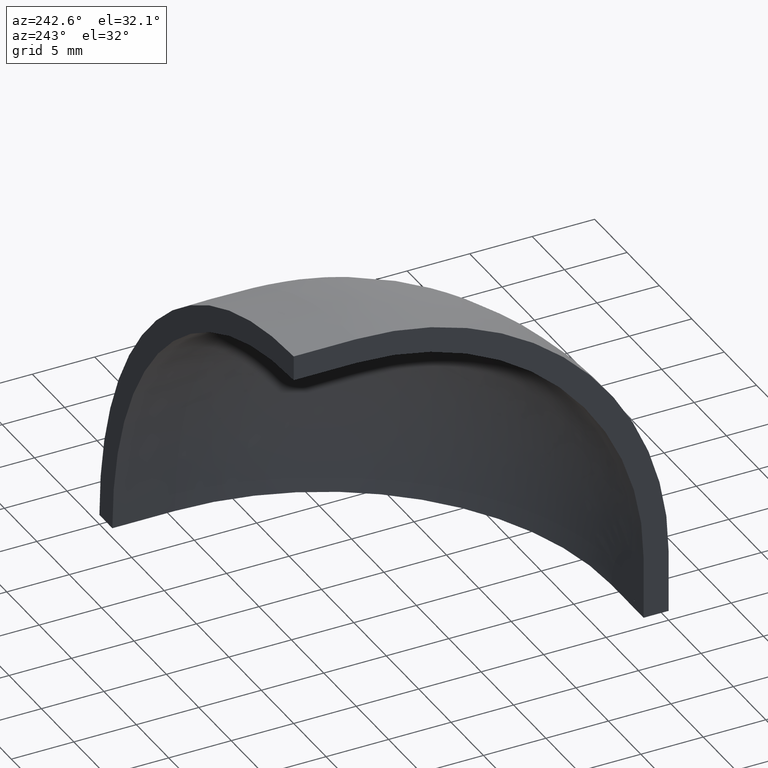
[diagram: clean part render]
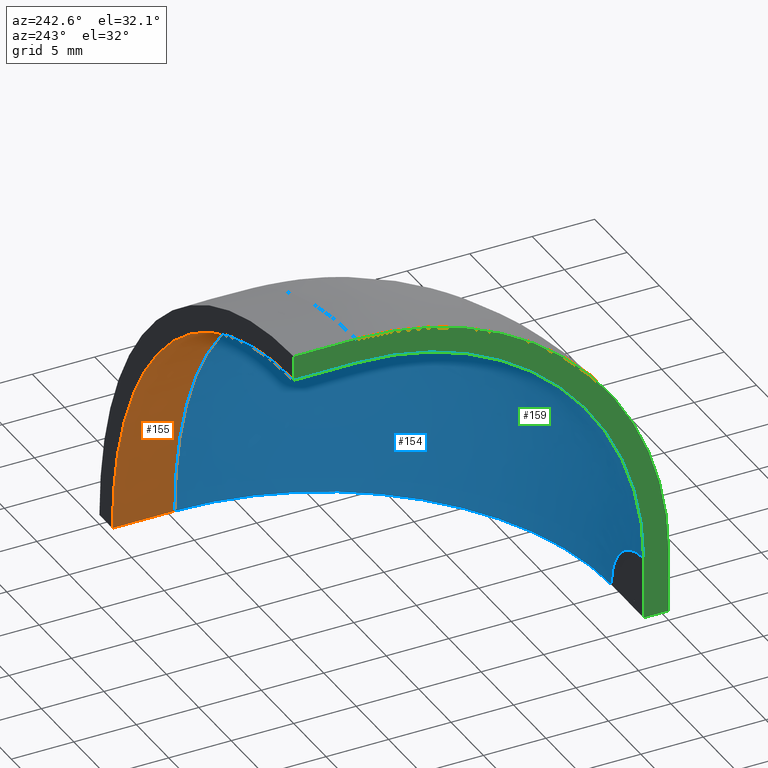
[diagram: same view with three faces highlighted in distinct colors, each labeled with its STEP entity id]
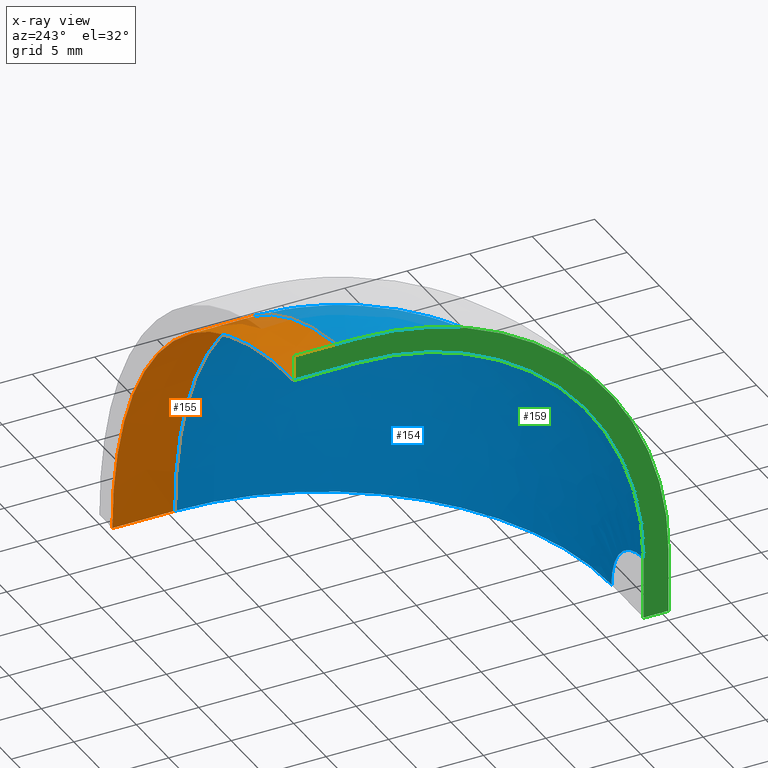
[diagram: x-ray of the same camera — body ghosted, the three highlighted faces saturated]
A machine part, auxiliary view with three faces highlighted in distinct colors.
The next image is the same camera in x-ray (body ghosted, the three faces saturated) — at least one of them is partly hidden behind the body in this view.
Their STEP definitions:

[orange] entity #155 — the highlighted conical surface has half-angle 0.062 deg.
#22=LINE('',#283,#33);
#23=LINE('',#285,#34);
#33=VECTOR('',#207,5.0010638607987);
#34=VECTOR('',#208,5.0010638607987);
#42=CONICAL_SURFACE('',#172,27.9972905586299,0.0620812910435585);
#48=FACE_OUTER_BOUND('',#57,.T.);
#57=EDGE_LOOP('',(#121,#122,#123,#124));
#69=CIRCLE('',#171,27.99999994179);
#70=CIRCLE('',#173,27.9945811754697);
#80=VERTEX_POINT('',#276);
#81=VERTEX_POINT('',#278);
#82=VERTEX_POINT('',#282);
#83=VERTEX_POINT('',#284);
#97=EDGE_CURVE('',#80,#81,#69,.T.);
#98=EDGE_CURVE('',#80,#82,#22,.T.);
#99=EDGE_CURVE('',#83,#81,#23,.T.);
#100=EDGE_CURVE('',#82,#83,#70,.T.);
#121=ORIENTED_EDGE('',*,*,#98,.F.);
#122=ORIENTED_EDGE('',*,*,#97,.T.);
#123=ORIENTED_EDGE('',*,*,#99,.F.);
#124=ORIENTED_EDGE('',*,*,#100,.F.);
#155=ADVANCED_FACE('',(#48),#42,.F.);
#171=AXIS2_PLACEMENT_3D('',#280,#203,#204);
#172=AXIS2_PLACEMENT_3D('',#281,#205,#206);
#173=AXIS2_PLACEMENT_3D('',#286,#209,#210);
#203=DIRECTION('center_axis',(0.,-1.,0.));
#204=DIRECTION('ref_axis',(1.,0.,-7.93016447809451E-17));
#205=DIRECTION('center_axis',(0.,-1.,0.));
#206=DIRECTION('ref_axis',(1.,0.,0.));
#207=DIRECTION('',(-0.00108352272058569,0.999999412989085,0.));
#208=DIRECTION('',(6.63466315784349E-20,-0.999999412989085,0.00108352272058569));
#209=DIRECTION('center_axis',(0.,-1.,0.));
#210=DIRECTION('ref_axis',(1.,0.,7.93169947902625E-17));
#276=CARTESIAN_POINT('',(27.99999994179,-5.00106092511962,0.));
#278=CARTESIAN_POINT('',(1.71450551524196E-15,-5.00106092511962,27.99999994179));
#280=CARTESIAN_POINT('Origin',(0.,-5.00106092511962,2.22044604925031E-15));
#281=CARTESIAN_POINT('Origin',(0.,-2.50053046255981,0.));
#282=CARTESIAN_POINT('',(27.9945811754697,0.,0.));
#283=CARTESIAN_POINT('',(27.99999994179,-5.00106092511962,0.));
#284=CARTESIAN_POINT('',(1.71417371150049E-15,0.,27.9945811754697));
#285=CARTESIAN_POINT('',(1.71450551524196E-15,-5.00106092511962,27.99999994179));
#286=CARTESIAN_POINT('Origin',(-6.66133814775094E-15,0.,-2.22044604925031E-15));

[blue] entity #154 — the highlighted face is a freeform B-spline surface patch.
#47=FACE_OUTER_BOUND('',#56,.T.);
#56=EDGE_LOOP('',(#117,#118,#119,#120));
#66=CIRCLE('',#168,4.97538579787226);
#67=CIRCLE('',#169,22.9999999999996);
#68=CIRCLE('',#170,22.9999999999996);
#69=CIRCLE('',#171,27.99999994179);
#78=VERTEX_POINT('',#256);
#79=VERTEX_POINT('',#258);
#80=VERTEX_POINT('',#276);
#81=VERTEX_POINT('',#278);
#94=EDGE_CURVE('',#78,#79,#66,.T.);
#95=EDGE_CURVE('',#78,#80,#67,.T.);
#96=EDGE_CURVE('',#81,#79,#68,.T.);
#97=EDGE_CURVE('',#80,#81,#69,.T.);
#117=ORIENTED_EDGE('',*,*,#95,.F.);
#118=ORIENTED_EDGE('',*,*,#94,.T.);
#119=ORIENTED_EDGE('',*,*,#96,.F.);
#120=ORIENTED_EDGE('',*,*,#97,.F.);
#150=(
BOUNDED_SURFACE()
B_SPLINE_SURFACE(2,2,((#261,#262,#263),(#264,#265,#266),(#267,#268,#269),
(#270,#271,#272),(#273,#274,#275)),.UNSPECIFIED.,.F.,.F.,.F.)
B_SPLINE_SURFACE_WITH_KNOTS((3,2,3),(3,3),(4.61278190302058E-5,0.785956318026223,
1.57186650823342),(1.5707963267949,3.14159265358979),.UNSPECIFIED.)
GEOMETRIC_REPRESENTATION_ITEM()
RATIONAL_B_SPLINE_SURFACE(((1.,0.707106781186548,1.),(0.923781530146996,
0.653212184301826,0.923781530146996),(1.,0.707106781186548,1.),(0.923781530146995,
0.653212184301825,0.923781530146995),(1.,0.707106781186548,1.)))
REPRESENTATION_ITEM('')
SURFACE()
);
#154=ADVANCED_FACE('',(#47),#150,.T.);
#168=AXIS2_PLACEMENT_3D('',#260,#197,#198);
#169=AXIS2_PLACEMENT_3D('',#277,#199,#200);
#170=AXIS2_PLACEMENT_3D('',#279,#201,#202);
#171=AXIS2_PLACEMENT_3D('',#280,#203,#204);
#197=DIRECTION('center_axis',(-6.31144004694163E-16,-1.,-1.52371641594311E-15));
#198=DIRECTION('ref_axis',(1.,-8.92572411248951E-16,8.92572411248951E-16));
#199=DIRECTION('center_axis',(0.,0.,1.));
#200=DIRECTION('ref_axis',(-0.00107018123424103,-0.999999427355899,0.));
#201=DIRECTION('center_axis',(1.,0.,-6.12323399573677E-17));
#202=DIRECTION('ref_axis',(-6.55297011510423E-20,-0.999999427355899,-0.00107018123424103));
#203=DIRECTION('center_axis',(0.,-1.,0.));
#204=DIRECTION('ref_axis',(1.,0.,-7.93016447809451E-17));
#256=CARTESIAN_POINT('',(4.97538579787225,-27.9999868144676,0.));
#258=CARTESIAN_POINT('',(3.04654514594373E-16,-27.9999868144676,4.97538579787225));
#260=CARTESIAN_POINT('Origin',(-2.77555756156289E-15,-27.9999868144676,
-4.44089209850063E-15));
#261=CARTESIAN_POINT('Ctrl Pts',(27.99999994179,-5.00106092511962,0.));
#262=CARTESIAN_POINT('Ctrl Pts',(27.99999994179,-5.00106092511962,27.99999994179));
#263=CARTESIAN_POINT('Ctrl Pts',(0.,-5.00106092511962,27.99999994179));
#264=CARTESIAN_POINT('Ctrl Pts',(27.9995601678702,-14.5348721636404,0.));
#265=CARTESIAN_POINT('Ctrl Pts',(27.9995601678702,-14.5348721636404,27.9995601678702));
#266=CARTESIAN_POINT('Ctrl Pts',(0.,-14.5348721636404,27.9995601678702));
#267=CARTESIAN_POINT('Ctrl Pts',(21.2543758774627,-21.2725309419986,0.));
#268=CARTESIAN_POINT('Ctrl Pts',(21.2543758774627,-21.2725309419986,21.2543758774627));
#269=CARTESIAN_POINT('Ctrl Pts',(0.,-21.2725309419986,21.2543758774627));
#270=CARTESIAN_POINT('Ctrl Pts',(14.5091915870552,-28.0101897203567,0.));
#271=CARTESIAN_POINT('Ctrl Pts',(14.5091915870552,-28.0101897203567,14.5091915870552));
#272=CARTESIAN_POINT('Ctrl Pts',(0.,-28.0101897203567,14.5091915870552));
#273=CARTESIAN_POINT('Ctrl Pts',(4.97538579787225,-27.9999868144676,0.));
#274=CARTESIAN_POINT('Ctrl Pts',(4.97538579787225,-27.9999868144676,4.97538579787225));
#275=CARTESIAN_POINT('Ctrl Pts',(0.,-27.9999868144676,4.97538579787225));
#276=CARTESIAN_POINT('',(27.99999994179,-5.00106092511962,0.));
#277=CARTESIAN_POINT('Origin',(4.9999999662598,-4.9999999852823,0.));
#278=CARTESIAN_POINT('',(1.71450551524196E-15,-5.00106092511962,27.99999994179));
#279=CARTESIAN_POINT('Origin',(3.06161697720847E-16,-4.9999999852823,4.9999999662598));
#280=CARTESIAN_POINT('Origin',(0.,-5.00106092511962,2.22044604925031E-15));

[green] entity #159 — the highlighted planar face has unit normal (-1, 0, 0).
#17=PLANE('',#178);
#19=LINE('',#253,#30);
#21=LINE('',#259,#32);
#23=LINE('',#285,#34);
#25=LINE('',#291,#36);
#27=LINE('',#295,#38);
#28=LINE('',#297,#39);
#30=VECTOR('',#192,4.98962349888907);
#32=VECTOR('',#196,4.97538714478859);
#34=VECTOR('',#208,5.0010638607987);
#36=VECTOR('',#214,2.00000117402253);
#38=VECTOR('',#220,5.00000292033832);
#39=VECTOR('',#223,2.00000054143192);
#52=FACE_OUTER_BOUND('',#61,.T.);
#61=EDGE_LOOP('',(#141,#142,#143,#144,#145,#146,#147,#148));
#64=CIRCLE('',#164,24.9999999999996);
#68=CIRCLE('',#170,22.9999999999996);
#74=VERTEX_POINT('',#245);
#75=VERTEX_POINT('',#247);
#76=VERTEX_POINT('',#251);
#77=VERTEX_POINT('',#255);
#79=VERTEX_POINT('',#258);
#81=VERTEX_POINT('',#278);
#83=VERTEX_POINT('',#284);
#85=VERTEX_POINT('',#290);
#88=EDGE_CURVE('',#75,#74,#64,.T.);
#91=EDGE_CURVE('',#76,#75,#19,.T.);
#93=EDGE_CURVE('',#79,#77,#21,.T.);
#96=EDGE_CURVE('',#81,#79,#68,.T.);
#99=EDGE_CURVE('',#83,#81,#23,.T.);
#102=EDGE_CURVE('',#85,#83,#25,.T.);
#105=EDGE_CURVE('',#74,#85,#27,.T.);
#106=EDGE_CURVE('',#76,#77,#28,.T.);
#141=ORIENTED_EDGE('',*,*,#105,.T.);
#142=ORIENTED_EDGE('',*,*,#102,.T.);
#143=ORIENTED_EDGE('',*,*,#99,.T.);
#144=ORIENTED_EDGE('',*,*,#96,.T.);
#145=ORIENTED_EDGE('',*,*,#93,.T.);
#146=ORIENTED_EDGE('',*,*,#106,.F.);
#147=ORIENTED_EDGE('',*,*,#91,.T.);
#148=ORIENTED_EDGE('',*,*,#88,.T.);
#159=ADVANCED_FACE('',(#52),#17,.T.);
#164=AXIS2_PLACEMENT_3D('',#248,#185,#186);
#170=AXIS2_PLACEMENT_3D('',#279,#201,#202);
#178=AXIS2_PLACEMENT_3D('',#298,#224,#225);
#185=DIRECTION('center_axis',(-1.,0.,6.12323399573677E-17));
#186=DIRECTION('ref_axis',(2.5418323537187E-20,0.999999913840709,0.000415112725642761));
#192=DIRECTION('',(6.12323233808005E-17,-0.000735820424844899,0.999999729284115));
#196=DIRECTION('',(-6.12323233808005E-17,0.000735820425271908,-0.999999729284114));
#201=DIRECTION('center_axis',(1.,0.,-6.12323399573677E-17));
#202=DIRECTION('ref_axis',(-6.55297011510423E-20,-0.999999427355899,-0.00107018123424103));
#208=DIRECTION('',(6.63466315784349E-20,-0.999999412989085,0.00108352272058569));
#214=DIRECTION('',(-6.12323399573677E-17,2.7755559322803E-16,-1.));
#220=DIRECTION('',(-6.63466315782876E-20,0.999999412989085,-0.00108352272058328));
#223=DIRECTION('',(0.,1.,0.));
#224=DIRECTION('center_axis',(-1.,0.,6.12323399573677E-17));
#225=DIRECTION('ref_axis',(6.12323399573677E-17,0.,1.));
#245=CARTESIAN_POINT('',(1.83697019665502E-15,-4.99999998528203,29.9999999662594));
#247=CARTESIAN_POINT('',(3.05526239632417E-16,-29.9999978312975,4.98962214811873));
#248=CARTESIAN_POINT('Origin',(3.06161697720847E-16,-4.9999999852823,4.9999999662598));
#251=CARTESIAN_POINT('',(0.,-29.9963263644147,0.));
#253=CARTESIAN_POINT('',(3.05526239632417E-16,-29.9999978312975,4.98962214811873));
#255=CARTESIAN_POINT('',(0.,-27.9963258229828,0.));
#258=CARTESIAN_POINT('',(3.04654514594373E-16,-27.9999868144676,4.97538579787225));
#259=CARTESIAN_POINT('',(0.,-27.9963258229828,0.));
#278=CARTESIAN_POINT('',(1.71450551524196E-15,-5.00106092511962,27.99999994179));
#279=CARTESIAN_POINT('Origin',(3.06161697720847E-16,-4.9999999852823,4.9999999662598));
#284=CARTESIAN_POINT('',(1.71417371150049E-15,0.,27.9945811754697));
#285=CARTESIAN_POINT('',(1.71450551524196E-15,-5.00106092511962,27.99999994179));
#290=CARTESIAN_POINT('',(1.83663846330337E-15,-5.55111512312578E-16,29.9945823494923));
#291=CARTESIAN_POINT('',(1.71417371150049E-15,0.,27.9945811754697));
#295=CARTESIAN_POINT('',(1.83663846330337E-15,-5.55111512312578E-16,29.9945823494923));
#297=CARTESIAN_POINT('',(0.,-29.9963263644147,0.));
#298=CARTESIAN_POINT('Origin',(1.15650065828091E-15,-18.8846003090243,18.8870890625135));